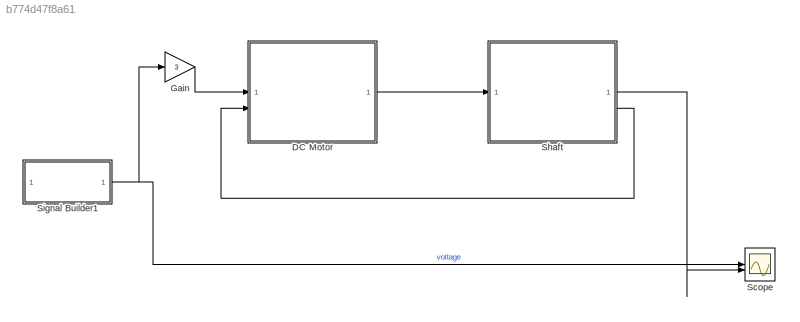
MODEL slx_b774d47f8a61
KIND model
CONFIG AbsTol = auto
CONFIG EnableMultiTasking = off
CONFIG FixedStep = auto
CONFIG InitFcn = Tstall = 20;\nNoLoadSpeed = 20;\nJ_inertia = 1;\nb_damping = 0;\nload('MyTest.mat')\nMyTime = MyTest(:,1); \nMyAngle = MyTest(:,2); \nVn = 30; \nwNL = NoLoadSpeed; \nK = Vn/wNL;\nR = Vn^2/wNL/Tstall;\nL = 1e-5;
CONFIG MaxStep = auto
CONFIG MinStep = auto
CONFIG RelTol = 1e-3
CONFIG SampleTimeConstraint = Unconstrained
CONFIG SolverName = VariableStepAuto
CONFIG StartTime = 0.0
CONFIG StopTime = 10.0
WORKSPACE source: mxarray member
WORKSPACE plant_model_spesession: sldodialogs.data.SessionData (value not decoded)
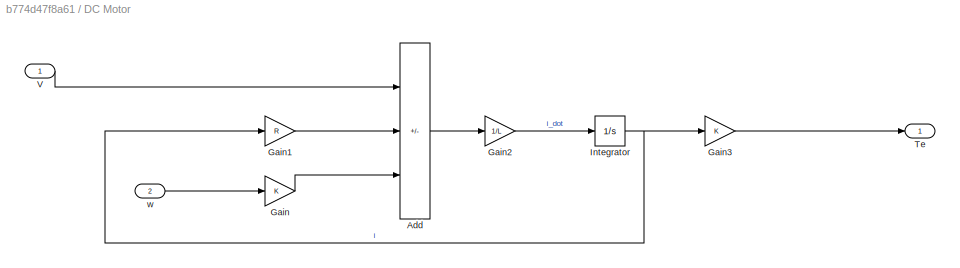
BLOCK [SubSystem] DC Motor
BLOCK [Sum] DC Motor/Add
  IconShape = rectangular
  Inputs = +--
BLOCK [Gain] DC Motor/Gain
  Gain = K
BLOCK [Gain] DC Motor/Gain1
  Gain = R
BLOCK [Gain] DC Motor/Gain2
  Gain = 1/L
BLOCK [Gain] DC Motor/Gain3
  Gain = K
BLOCK [Integrator] DC Motor/Integrator
BLOCK [Outport] DC Motor/Te
BLOCK [Inport] DC Motor/V
BLOCK [Inport] DC Motor/w
  Port = 2
BLOCK [Gain] Gain
  Gain = 3
BLOCK [Scope] Scope
  Floating = off
  NumInputPorts = 2
  ScopeSpecificationString = Simulink.scopes.TimeScopeBlockCfg('CurrentConfiguration', extmgr.ConfigurationSet(extmgr.Configuration('Core','General UI',true),extmgr.Configuration('Core','Source UI',true),extmgr.Configuration('Sources','WiredSimulink',true),extmgr.Configuration('Visuals','Time Domain',true,'SerializedDisplays',{struct('MinYLimReal','-3.75','MaxYLimReal','3.75','YLabelReal','','MinYLimMag','0.00000','MaxYLimMag...<+2023ch>
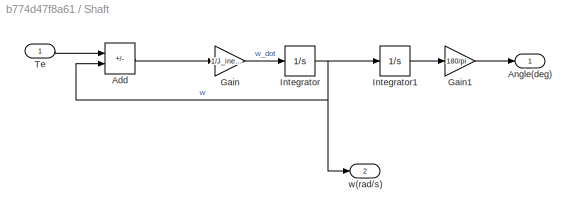
BLOCK [SubSystem] Shaft
BLOCK [Sum] Shaft/Add
  IconShape = rectangular
  Inputs = +-
BLOCK [Outport] Shaft/Angle(deg)
BLOCK [Gain] Shaft/Gain
  Gain = 1/J_inertia
BLOCK [Gain] Shaft/Gain1
  Gain = 180/pi
BLOCK [Integrator] Shaft/Integrator
BLOCK [Integrator] Shaft/Integrator1
BLOCK [Inport] Shaft/Te
BLOCK [Outport] Shaft/w(rad//s)
  Port = 2
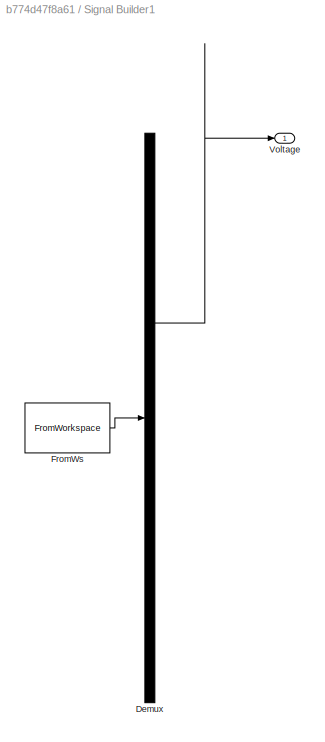
BLOCK [SubSystem] Signal Builder1
  ClipboardFcn = sigbuilder_block('clipboard');
  CloseFcn = sigbuilder_block('close');
  ContinueFcn = sigbuilder_block('continue')
  CopyFcn = sigbuilder_block('copy');
  DeleteFcn = sigbuilder_block('delete');
  LoadFcn = sigbuilder_block('load');
  MaskHideContents = on
  ModelCloseFcn = sigbuilder_block('modelClose');
  NameChangeFcn = sigbuilder_block('namechange');
  OpenFcn = sigbuilder_block('open',[495.75 237 550.5 399.75 ]);
  PauseFcn = sigbuilder_block('pause')
  PreSaveFcn = sigbuilder_block('preSave');
  StartFcn = sigbuilder_block('start');
  StopFcn = sigbuilder_block('stop');
  Tag = STV Subsys
BLOCK [Demux] Signal Builder1/Demux
  DisplayOption = none
  Outputs = 1
  Tag = STV Demux
BLOCK [FromWorkspace] Signal Builder1/FromWs
  SampleTime = 1/100
  Tag = STV FromWs
  VariableName = tuvar
BLOCK [Outport] Signal Builder1/Voltage
  Tag = STV Outport
  VectorParamsAs1DForOutWhenUnconnected = off
LINE DC Motor/Add:1 -> DC Motor/Gain2:1
LINE DC Motor/Gain1:1 -> DC Motor/Add:2
LINE DC Motor/Gain2:1 -> DC Motor/Integrator:1
LINE DC Motor/Gain3:1 -> DC Motor/Te:1
LINE DC Motor/Gain:1 -> DC Motor/Add:3
NET DC Motor/Integrator:1 -> DC Motor/Gain1:1, DC Motor/Gain3:1
LINE DC Motor/V:1 -> DC Motor/Add:1
LINE DC Motor/w:1 -> DC Motor/Gain:1
LINE DC Motor:1 -> Shaft:1
LINE Gain:1 -> DC Motor:1
LINE Shaft/Add:1 -> Shaft/Gain:1
LINE Shaft/Gain1:1 -> Shaft/Angle(deg):1
LINE Shaft/Gain:1 -> Shaft/Integrator:1
LINE Shaft/Integrator1:1 -> Shaft/Gain1:1
NET Shaft/Integrator:1 -> Shaft/Add:2, Shaft/Integrator1:1, Shaft/w(rad//s):1
LINE Shaft/Te:1 -> Shaft/Add:1
LINE Shaft:1 -> Scope:2
LINE Shaft:2 -> DC Motor:2
NET Signal Builder1:1 -> Gain:1, Scope:1
note: NET lines group one-source signal fan-out (src -> all destinations, sorted); 1:1 wires keep LINE
